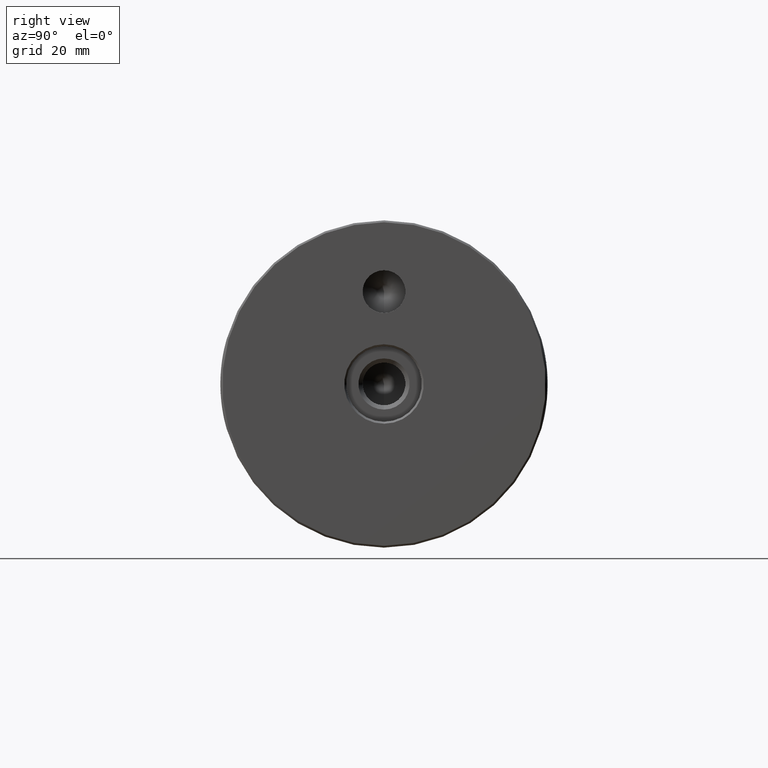
[diagram: clean part render]
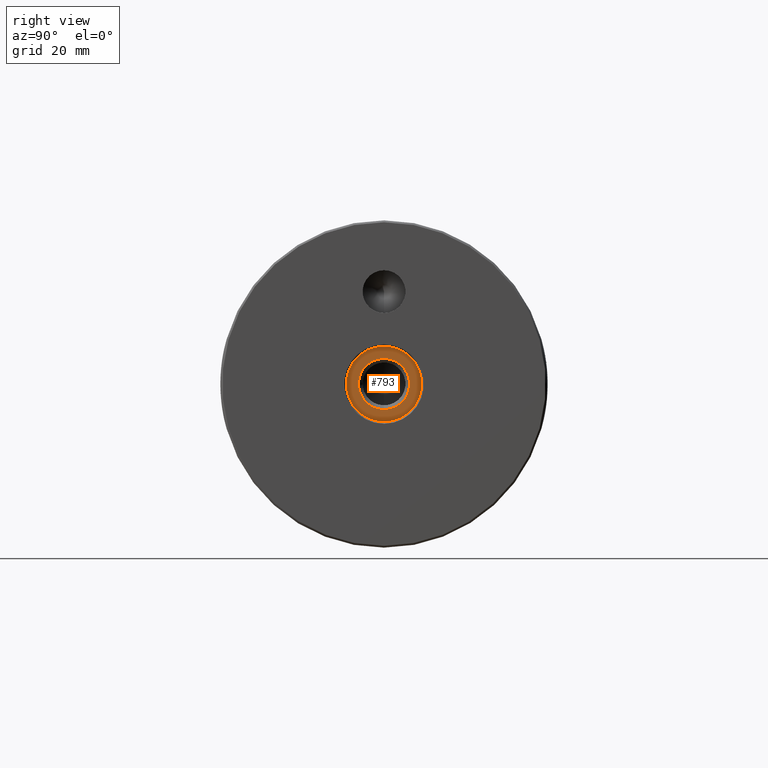
[diagram: same view with one face highlighted and labeled with its STEP entity id]
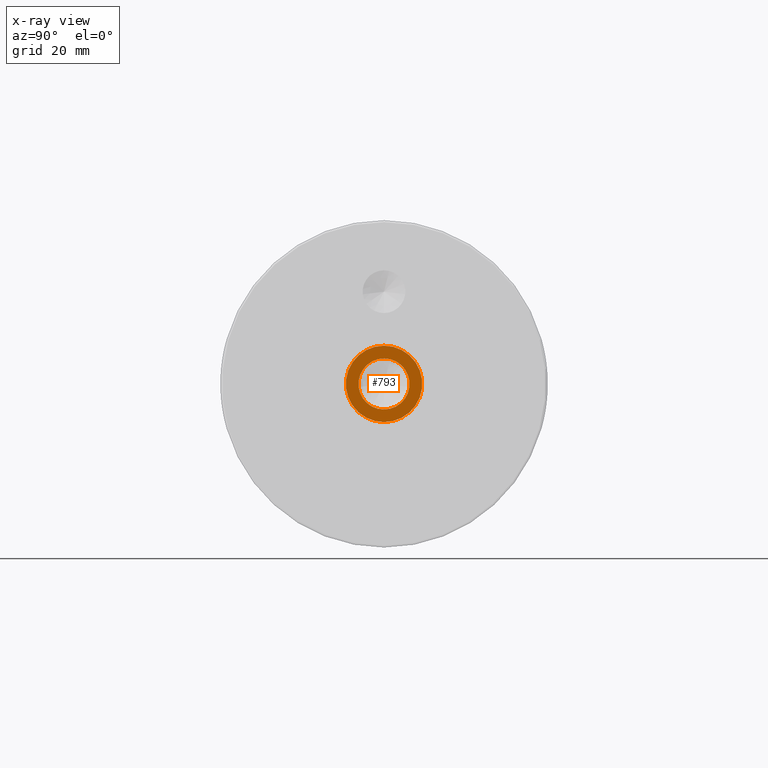
[diagram: x-ray of the same camera — body ghosted, the highlighted face saturated]
A machine part, right view. The second image highlights one B-rep face of the part: STEP entity #793.
The next image is the same camera in x-ray: the body ghosted, the highlighted face saturated — about 0% of this face is hidden behind the body in this view.
In plain terms, the highlighted planar face has unit normal (-1, 0, 0).
Its self-contained STEP definition (entity closure, byte-faithful):
#60 = EDGE_LOOP ( 'NONE', ( #929 ) ) ;
#66 = FACE_OUTER_BOUND ( 'NONE', #60, .T. ) ;
#79 = DIRECTION ( 'NONE',  ( 0.0000000000000000000, 0.0000000000000000000, -1.000000000000000000 ) ) ;
#221 = PLANE ( 'NONE',  #359 ) ;
#246 = VERTEX_POINT ( 'NONE', #726 ) ;
#255 = EDGE_LOOP ( 'NONE', ( #396 ) ) ;
#329 = DIRECTION ( 'NONE',  ( 0.0000000000000000000, 0.0000000000000000000, 1.000000000000000000 ) ) ;
#345 = CIRCLE ( 'NONE', #588, 6.099999999999998800 ) ;
#359 = AXIS2_PLACEMENT_3D ( 'NONE', #758, #691, #329 ) ;
#394 = EDGE_CURVE ( 'NONE', #628, #628, #345, .T. ) ;
#396 = ORIENTED_EDGE ( 'NONE', *, *, #394, .F. ) ;
#471 = AXIS2_PLACEMENT_3D ( 'NONE', #641, #849, #515 ) ;
#515 = DIRECTION ( 'NONE',  ( 0.0000000000000000000, 0.0000000000000000000, -1.000000000000000000 ) ) ;
#588 = AXIS2_PLACEMENT_3D ( 'NONE', #951, #698, #79 ) ;
#589 = EDGE_CURVE ( 'NONE', #246, #246, #784, .T. ) ;
#628 = VERTEX_POINT ( 'NONE', #790 ) ;
#641 = CARTESIAN_POINT ( 'NONE',  ( -8.000000000000000000, 0.0000000000000000000, 0.0000000000000000000 ) ) ;
#691 = DIRECTION ( 'NONE',  ( -1.000000000000000000, 0.0000000000000000000, 0.0000000000000000000 ) ) ;
#698 = DIRECTION ( 'NONE',  ( 1.000000000000000000, -0.0000000000000000000, -0.0000000000000000000 ) ) ;
#726 = CARTESIAN_POINT ( 'NONE',  ( -8.000000000000000000, 0.0000000000000000000, -9.099999999999999600 ) ) ;
#758 = CARTESIAN_POINT ( 'NONE',  ( -8.000000000000000000, 9.099999999999999600, 0.0000000000000000000 ) ) ;
#784 = CIRCLE ( 'NONE', #471, 9.099999999999999600 ) ;
#790 = CARTESIAN_POINT ( 'NONE',  ( -8.000000000000000000, 0.0000000000000000000, -6.099999999999998800 ) ) ;
#793 = ADVANCED_FACE ( 'NONE', ( #983, #66 ), #221, .F. ) ;
#849 = DIRECTION ( 'NONE',  ( 1.000000000000000000, -0.0000000000000000000, -0.0000000000000000000 ) ) ;
#929 = ORIENTED_EDGE ( 'NONE', *, *, #589, .T. ) ;
#951 = CARTESIAN_POINT ( 'NONE',  ( -8.000000000000000000, 0.0000000000000000000, 0.0000000000000000000 ) ) ;
#983 = FACE_BOUND ( 'NONE', #255, .T. ) ;